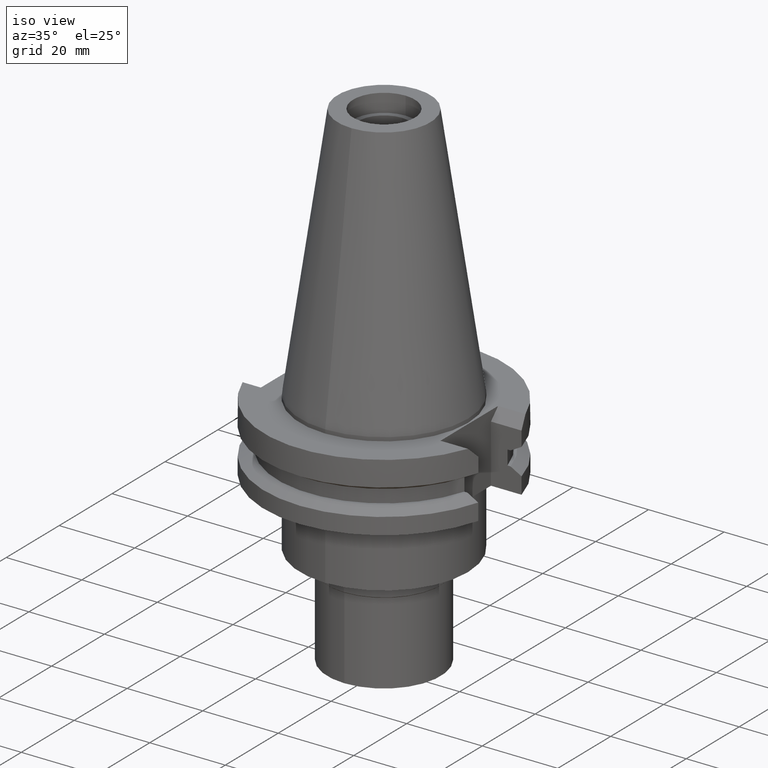
[diagram: clean part render]
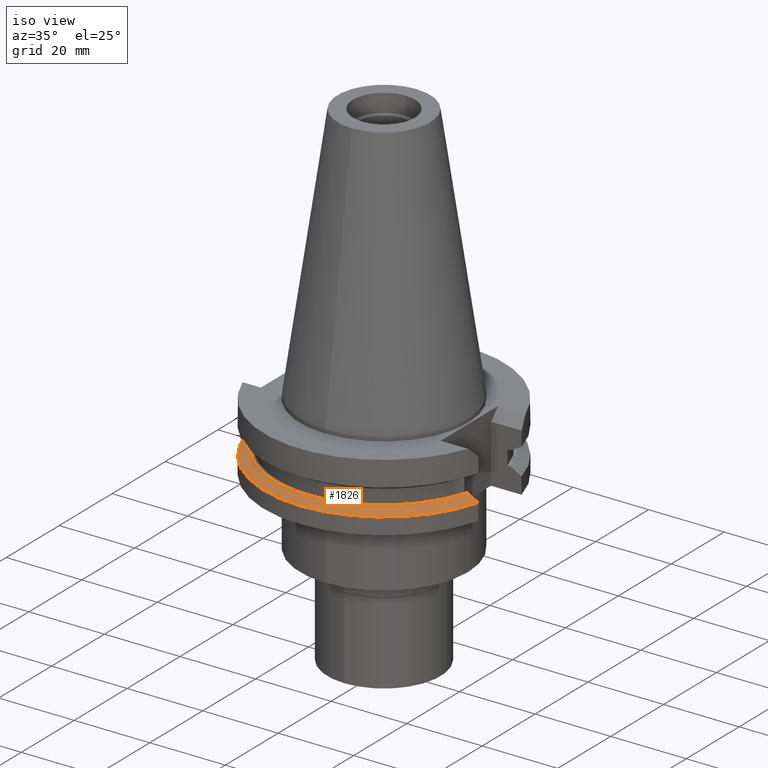
[diagram: same view with one face highlighted and labeled with its STEP entity id]
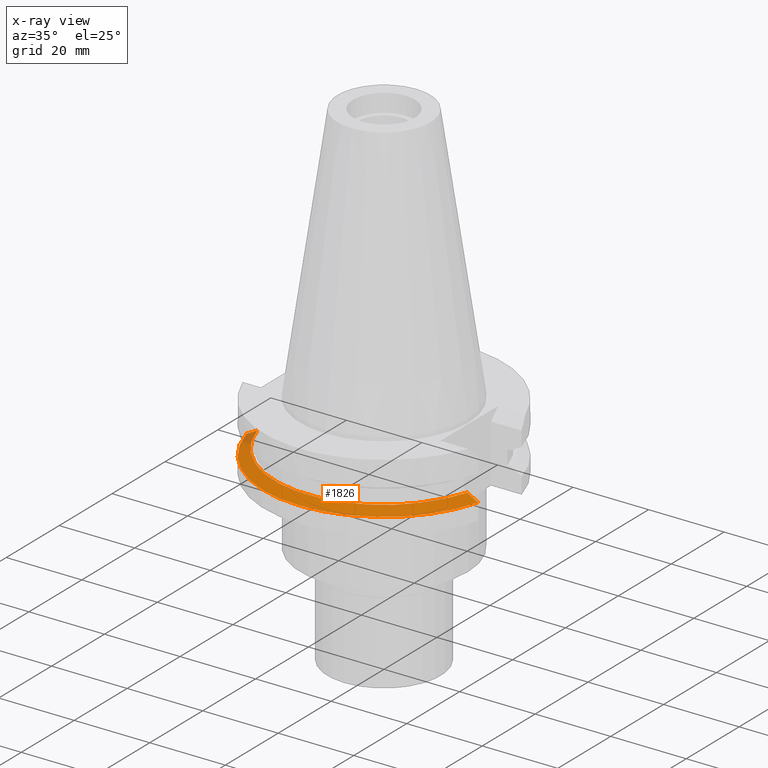
[diagram: x-ray of the same camera — body ghosted, the highlighted face saturated]
A machine part, iso view. The second image highlights one B-rep face of the part: STEP entity #1826.
The next image is the same camera in x-ray: the body ghosted, the highlighted face saturated — about 3% of this face is hidden behind the body in this view.
In plain terms, the highlighted conical surface has half-angle 60 deg.
Its self-contained STEP definition (entity closure, byte-faithful):
#96 = AXIS2_PLACEMENT_3D ( 'NONE', #2047, #2033, #2768 ) ;
#107 = EDGE_LOOP ( 'NONE', ( #165, #3016, #2091, #2034 ) ) ;
#126 = CARTESIAN_POINT ( 'NONE',  ( -28.70625660234746945, -8.190000373975582448, -13.55704074927204772 ) ) ;
#165 = ORIENTED_EDGE ( 'NONE', *, *, #1927, .T. ) ;
#181 = CARTESIAN_POINT ( 'NONE',  ( 30.67550166024999925, -8.189999871291000488, -14.65366561887999985 ) ) ;
#239 = CIRCLE ( 'NONE', #1992, 31.74999999999998579 ) ;
#389 = B_SPLINE_CURVE_WITH_KNOTS ( 'NONE', 3,
 ( #181, #1146, #2087, #3068 ),
 .UNSPECIFIED., .F., .F.,
 ( 4, 4 ),
 ( 0.0000000000000000000, 1.000000000000000000 ),
 .UNSPECIFIED. ) ;
#511 = CARTESIAN_POINT ( 'NONE',  ( 27.78617712351000080, -8.189999355137999260, -13.04749999999999943 ) ) ;
#551 = DIRECTION ( 'NONE',  ( 0.0000000000000000000, 0.0000000000000000000, -1.000000000000000000 ) ) ;
#552 = CARTESIAN_POINT ( 'NONE',  ( 30.67550166024999925, -8.189999871291000488, -14.65366561887999985 ) ) ;
#609 = CARTESIAN_POINT ( 'NONE',  ( -29.66936131467135596, -8.190001216770378178, -14.09243050730567326 ) ) ;
#744 = VERTEX_POINT ( 'NONE', #1080 ) ;
#814 = DIRECTION ( 'NONE',  ( 0.9661575315241073270, -0.2579527559055020958, 0.0000000000000000000 ) ) ;
#845 = B_SPLINE_CURVE_WITH_KNOTS ( 'NONE', 3,
 ( #2755, #126, #609, #1087 ),
 .UNSPECIFIED., .F., .F.,
 ( 4, 4 ),
 ( 0.0000000000000000000, 1.000000000000000000 ),
 .UNSPECIFIED. ) ;
#1080 = CARTESIAN_POINT ( 'NONE',  ( -27.78616460091999940, -8.190000186775000302, -13.04749999999999943 ) ) ;
#1087 = CARTESIAN_POINT ( 'NONE',  ( -30.67550146339999984, -8.190000608604000476, -14.65367220791999969 ) ) ;
#1099 = VERTEX_POINT ( 'NONE', #511 ) ;
#1107 = FACE_OUTER_BOUND ( 'NONE', #107, .T. ) ;
#1146 = CARTESIAN_POINT ( 'NONE',  ( 29.66936063167633719, -8.189999742675245997, -14.09242990318604782 ) ) ;
#1169 = CARTESIAN_POINT ( 'NONE',  ( 0.0000000000000000000, 0.0000000000000000000, -13.04749999999999943 ) ) ;
#1303 = CARTESIAN_POINT ( 'NONE',  ( 0.0000000000000000000, 0.0000000000000000000, -14.65366676908000088 ) ) ;
#1506 = EDGE_CURVE ( 'NONE', #2120, #1654, #239, .T. ) ;
#1622 = AXIS2_PLACEMENT_3D ( 'NONE', #1169, #3023, #2267 ) ;
#1654 = VERTEX_POINT ( 'NONE', #2699 ) ;
#1826 = ADVANCED_FACE ( 'NONE', ( #1107 ), #1932, .T. ) ;
#1927 = EDGE_CURVE ( 'NONE', #2120, #1099, #389, .T. ) ;
#1928 = EDGE_CURVE ( 'NONE', #744, #1654, #845, .T. ) ;
#1932 = CONICAL_SURFACE ( 'NONE', #96, 30.35901877526999826, 1.047197551196400456 ) ;
#1992 = AXIS2_PLACEMENT_3D ( 'NONE', #1303, #551, #814 ) ;
#2033 = DIRECTION ( 'NONE',  ( 0.0000000000000000000, 0.0000000000000000000, -1.000000000000000000 ) ) ;
#2034 = ORIENTED_EDGE ( 'NONE', *, *, #1506, .F. ) ;
#2047 = CARTESIAN_POINT ( 'NONE',  ( 0.0000000000000000000, 0.0000000000000000000, -13.85058338454000015 ) ) ;
#2087 = CARTESIAN_POINT ( 'NONE',  ( 28.70626002252346254, -8.189998708851865317, -13.55704239403890377 ) ) ;
#2091 = ORIENTED_EDGE ( 'NONE', *, *, #1928, .T. ) ;
#2120 = VERTEX_POINT ( 'NONE', #552 ) ;
#2267 = DIRECTION ( 'NONE',  ( 0.0000000000000000000, -1.000000000000000000, 0.0000000000000000000 ) ) ;
#2360 = EDGE_CURVE ( 'NONE', #1099, #744, #2574, .T. ) ;
#2574 = CIRCLE ( 'NONE', #1622, 28.96803755052999918 ) ;
#2699 = CARTESIAN_POINT ( 'NONE',  ( -30.67550146339999984, -8.190000608604000476, -14.65367220791999969 ) ) ;
#2755 = CARTESIAN_POINT ( 'NONE',  ( -27.78616460091999940, -8.190000186775000302, -13.04749999999999943 ) ) ;
#2768 = DIRECTION ( 'NONE',  ( 0.0000000000000000000, -1.000000000000000000, 0.0000000000000000000 ) ) ;
#3016 = ORIENTED_EDGE ( 'NONE', *, *, #2360, .T. ) ;
#3023 = DIRECTION ( 'NONE',  ( 0.0000000000000000000, 0.0000000000000000000, -1.000000000000000000 ) ) ;
#3068 = CARTESIAN_POINT ( 'NONE',  ( 27.78617712351000080, -8.189999355137999260, -13.04749999999999943 ) ) ;